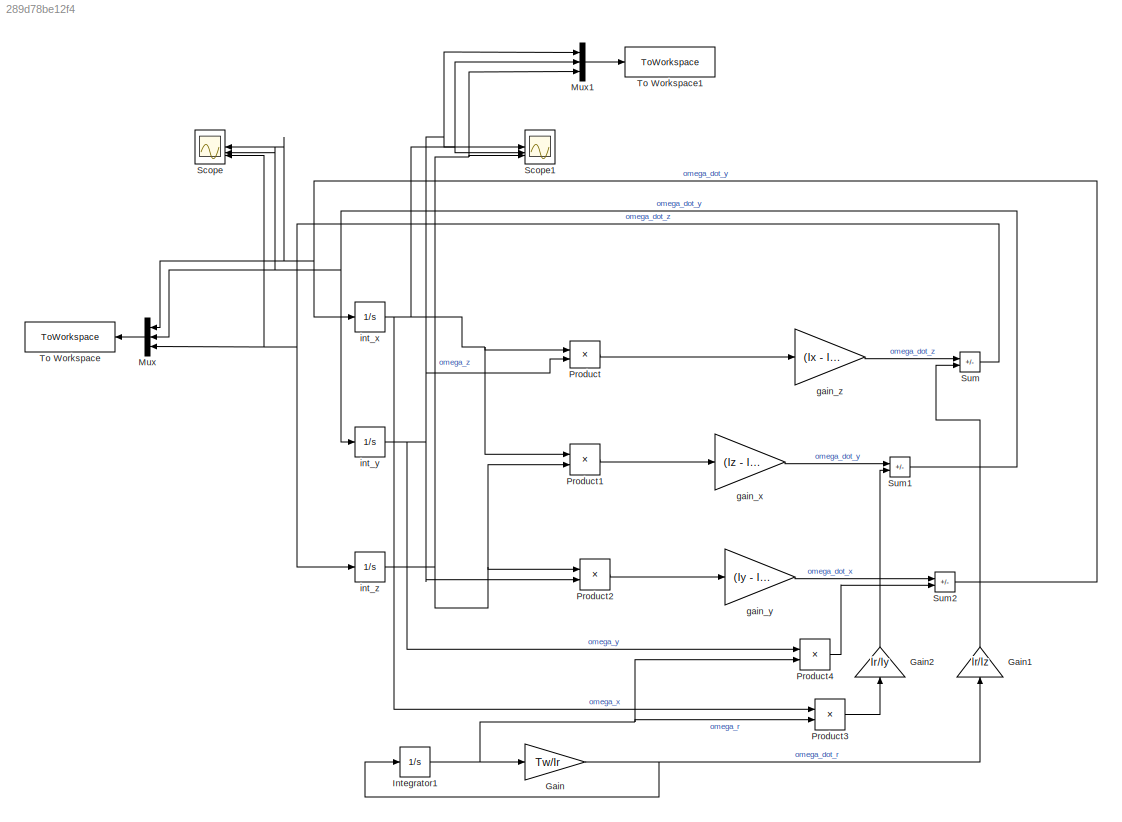
MODEL slx_289d78be12f4
KIND model
CONFIG AbsTol = auto
CONFIG EnableMultiTasking = off
CONFIG FixedStep = 0.1
CONFIG MaxStep = auto
CONFIG MinStep = auto
CONFIG RelTol = 1e-3
CONFIG SampleTimeConstraint = Unconstrained
CONFIG SolverName = ode4
CONFIG StartTime = 0.0
CONFIG StopTime = 100.0
BLOCK [Gain] Gain
  Gain = Tw/Ir
BLOCK [Gain] Gain1
  Gain = Ir/Iz
  NameLocation = right
BLOCK [Gain] Gain2
  Gain = Ir/Iy
  NameLocation = right
BLOCK [Integrator] Integrator1
  InitialCondition = om_r
BLOCK [Mux] Mux
  DisplayOption = bar
  Inputs = 3
  NameLocation = top
BLOCK [Mux] Mux1
  DisplayOption = bar
  Inputs = 3
BLOCK [Product] Product
BLOCK [Product] Product1
BLOCK [Product] Product2
BLOCK [Product] Product3
BLOCK [Product] Product4
BLOCK [Scope] Scope
  Floating = off
  NameLocation = top
  NumInputPorts = 3
  ScopeSpecificationString = Simulink.scopes.TimeScopeBlockCfg('CurrentConfiguration', extmgr.ConfigurationSet(extmgr.Configuration('Core','General UI',true),extmgr.Configuration('Core','Source UI',true),extmgr.Configuration('Sources','WiredSimulink',true,'DataLoggingVariableName','ScopeData1'),extmgr.Configuration('Visuals','Time Domain',true,'SerializedDisplays',{struct('MinYLimReal','-6.89763','MaxYLimReal','6.90523','YLab...<+1440ch>
BLOCK [Scope] Scope1
  Floating = off
  NumInputPorts = 3
  ScopeSpecificationString = Simulink.scopes.TimeScopeBlockCfg('CurrentConfiguration', extmgr.ConfigurationSet(extmgr.Configuration('Core','General UI',true),extmgr.Configuration('Core','Source UI',true),extmgr.Configuration('Sources','WiredSimulink',true),extmgr.Configuration('Visuals','Time Domain',true,'SerializedDisplays',{struct('MinYLimReal','-6.41865','MaxYLimReal','1.64453','YLabelReal','','MinYLimMag','0.00000','MaxY...<+1402ch>
BLOCK [Sum] Sum
  IconShape = rectangular
  Inputs = +-
BLOCK [Sum] Sum1
  IconShape = rectangular
  Inputs = +-
BLOCK [Sum] Sum2
  IconShape = rectangular
  Inputs = +-
BLOCK [ToWorkspace] To Workspace
  FixptAsFi = on
  MaxDataPoints = inf
  NameLocation = top
  SampleTime = -1
  VariableName = om_dot
BLOCK [ToWorkspace] To Workspace1
  FixptAsFi = on
  MaxDataPoints = inf
  SampleTime = -1
  VariableName = omega
BLOCK [Gain] gain_x
  Gain = (Iz - Ix)/Iy
BLOCK [Gain] gain_y
  Gain = (Iy - Iz)/Ix
BLOCK [Gain] gain_z
  Gain = (Ix - Iy)/Iz
BLOCK [Integrator] int_x
  InitialCondition = om_x0
BLOCK [Integrator] int_y
  InitialCondition = om_y0
BLOCK [Integrator] int_z
  InitialCondition = om_z0
LINE Gain1:1 -> Sum:2
LINE Gain2:1 -> Sum1:2
NET Gain:1 -> Gain1:1, Integrator1:1
NET Integrator1:1 -> Gain:1, Product3:2, Product4:2
LINE Mux1:1 -> To Workspace1:1
LINE Mux:1 -> To Workspace:1
LINE Product1:1 -> gain_x:1
LINE Product2:1 -> gain_y:1
LINE Product3:1 -> Gain2:1
LINE Product4:1 -> Sum2:2
LINE Product:1 -> gain_z:1
NET Sum1:1 -> Mux:2, Scope:2, int_y:1
NET Sum2:1 -> Mux:1, Scope:1, int_x:1
NET Sum:1 -> Mux:3, Scope:3, int_z:1
LINE gain_x:1 -> Sum1:1
LINE gain_y:1 -> Sum2:1
LINE gain_z:1 -> Sum:1
NET int_x:1 -> Mux1:2, Product1:1, Product3:1, Product:1, Scope1:2
NET int_y:1 -> Mux1:1, Product2:2, Product4:1, Product:2, Scope1:1
NET int_z:1 -> Mux1:3, Product1:2, Product2:1, Scope1:3
note: NET lines group one-source signal fan-out (src -> all destinations, sorted); 1:1 wires keep LINE
